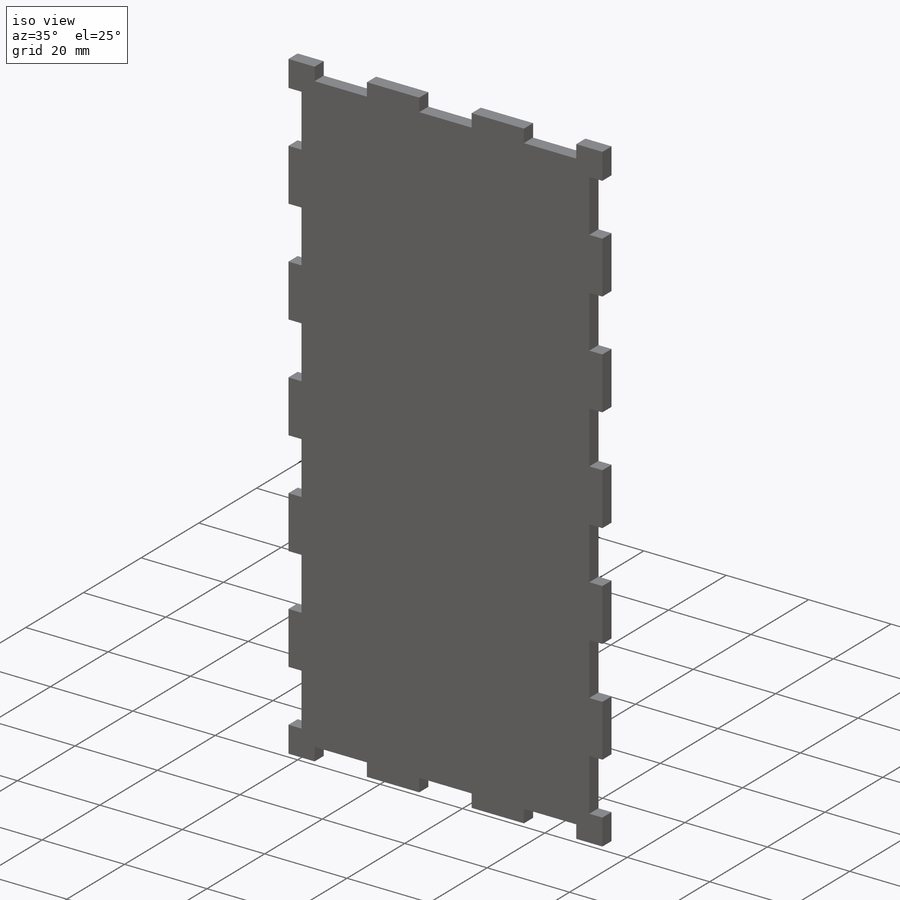
[diagram: iso view]
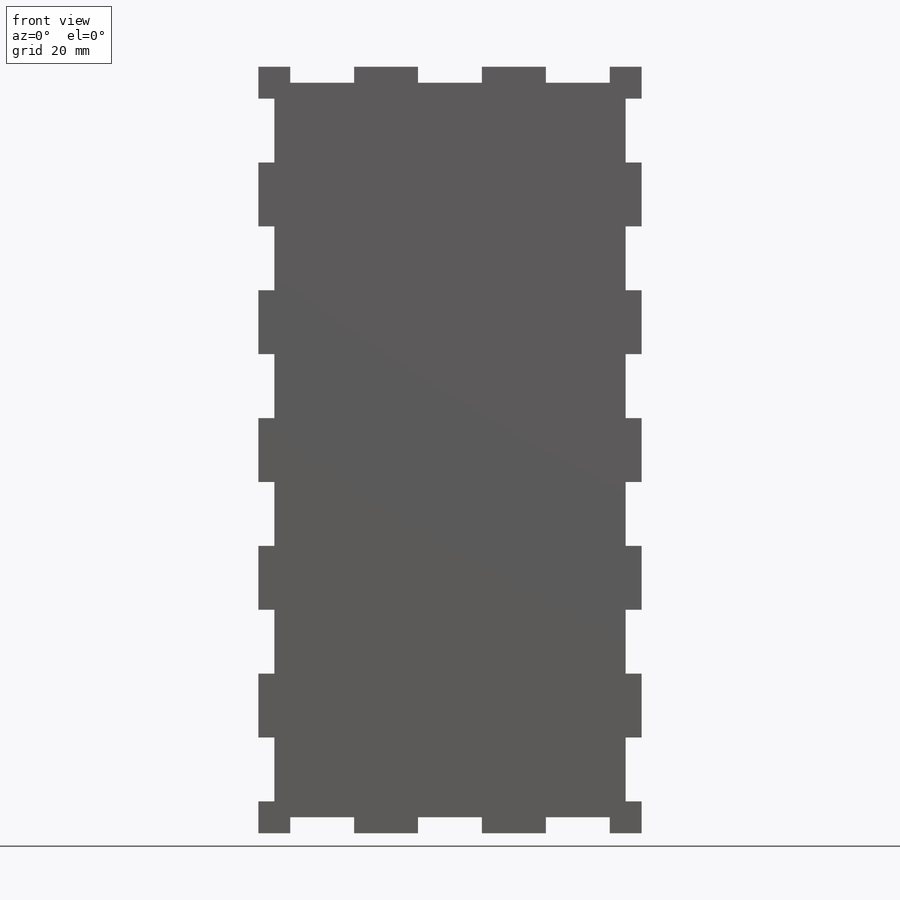
[diagram: front view]
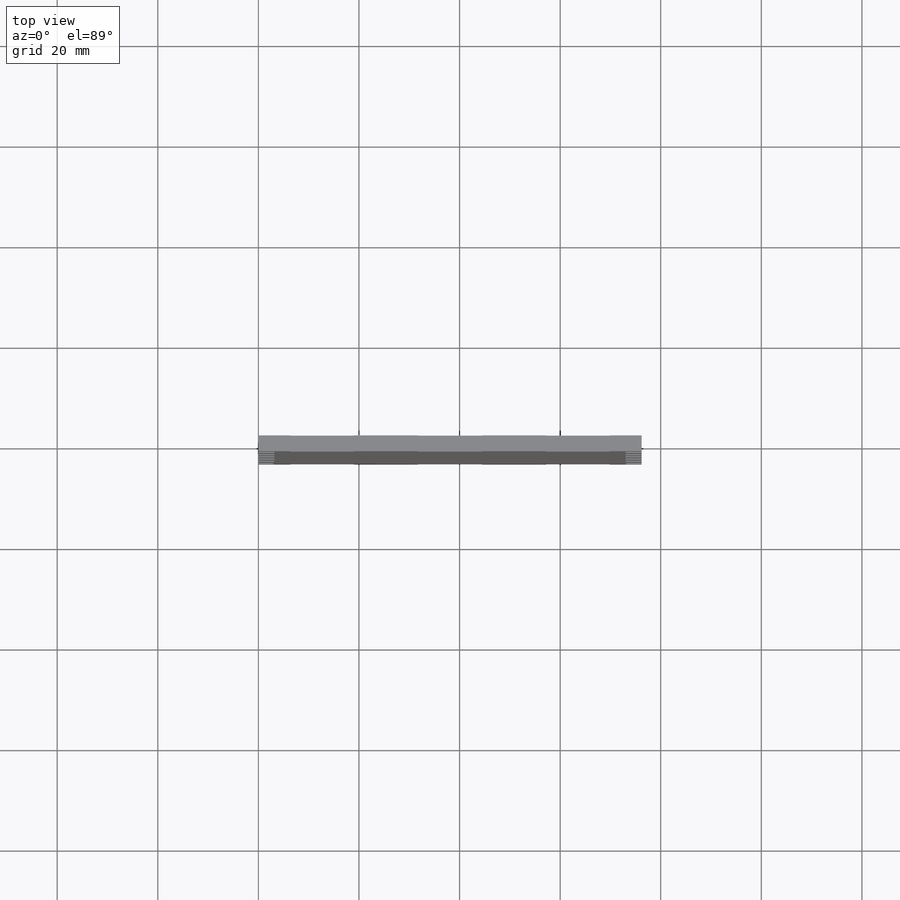
[diagram: top view]
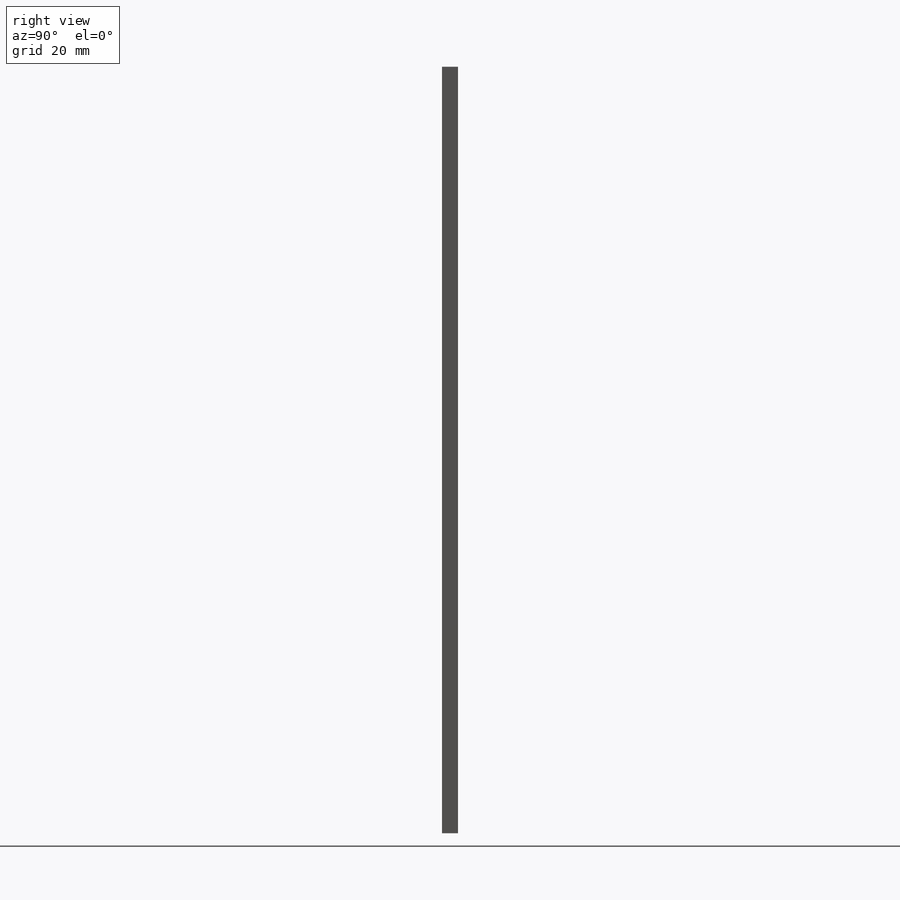
[diagram: right view]
SOLIDWORKS PART (.sldprt)
format: sldprt  version: not decoded by parser v0  size: 187,904 bytes
history: native  units: mm
features: sketch x3, cut_extrude x2, pattern_linear x2, material x1, extrude x1 (+17 scaffold rows collapsed)
feature tree (26):
  scaffold x17  (default folders/planes/origin — collapsed)
  material  "Material <not specified>"
  sketch  "Sketch1"  dims[D1=76.2mm D2=152.4mm]
  extrude  "Extrude1"  Depth=3.175mm
  sketch  "Sketch3"  dims[D1=3.175mm D2=12.7mm D3=6.35mm]
  cut_extrude  "Cut-Extrude1"  Depth=3.175mm
  pattern_linear  "LPattern1"  Count1=6 Count2=2 Spacing1=25.4mm Spacing2=73.025mm
  sketch  "Sketch4"  dims[D1=12.7mm D2=3.175mm D3=6.35mm]
  cut_extrude  "Cut-Extrude2"  Depth=3.175mm
  pattern_linear  "LPattern2"  Count1=3 Count2=2 Spacing1=25.4mm Spacing2=149.225mm
decode coverage: 8 of 8 modeling features carry decoded parameters
note: suppression state not decoded; provenance and decode notes live in map.json
